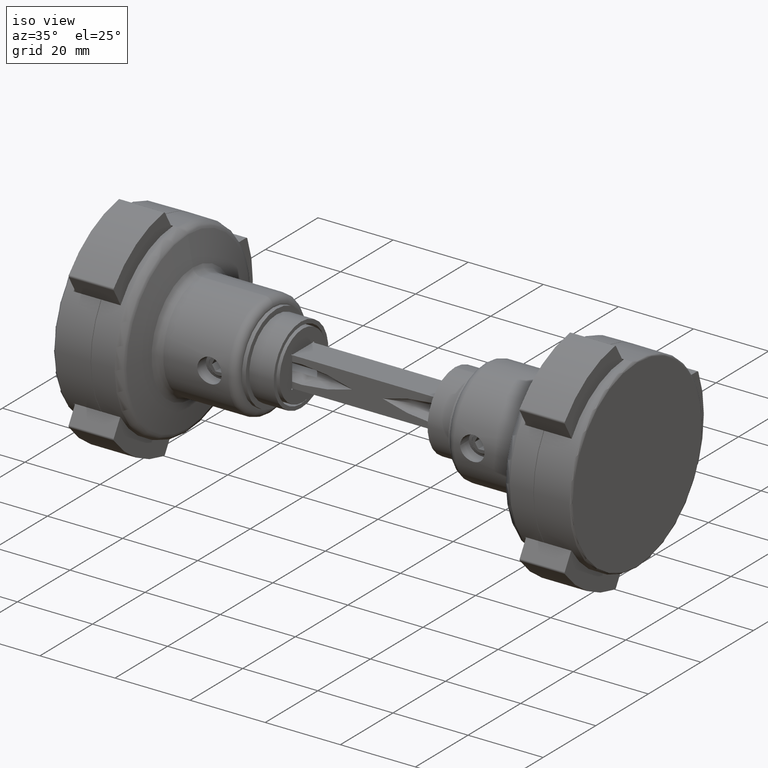
[diagram: clean part render]
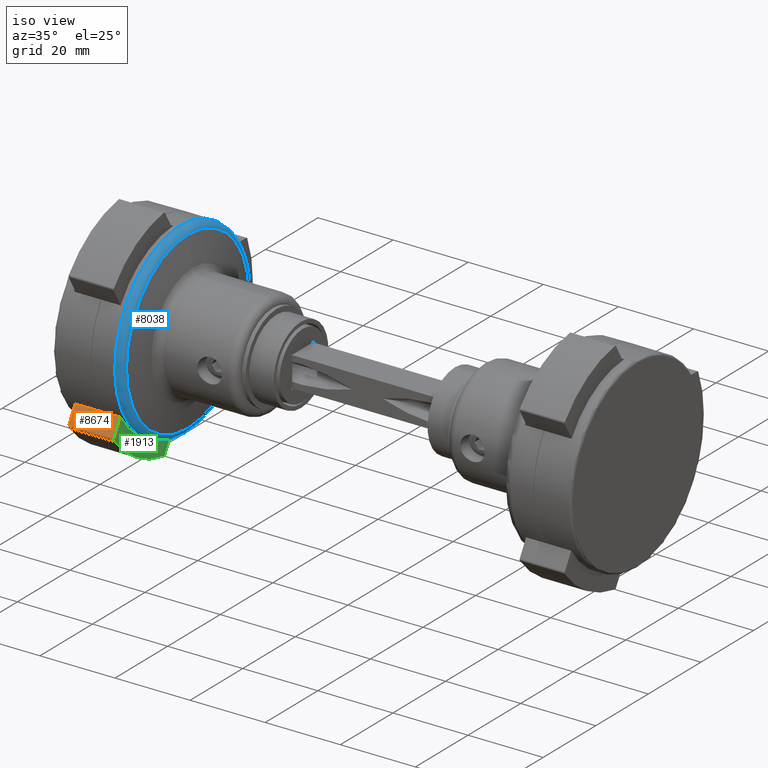
[diagram: same view with three faces highlighted in distinct colors, each labeled with its STEP entity id]
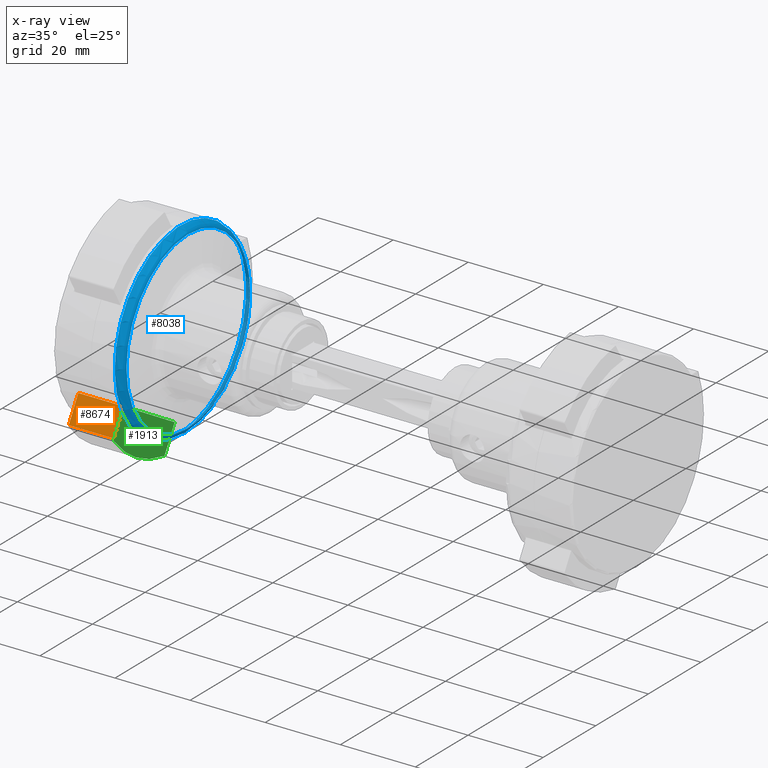
[diagram: x-ray of the same camera — body ghosted, the three highlighted faces saturated]
A machine part, iso view with three faces highlighted in distinct colors.
The next image is the same camera in x-ray (body ghosted, the three faces saturated) — at least one of them is partly hidden behind the body in this view.
Their STEP definitions:

[orange] entity #8674 — the highlighted planar face has unit normal (0, -0.866, 0.5).
#261 = VECTOR ( 'NONE', #10300, 1000.000000000000000 ) ;
#285 = EDGE_CURVE ( 'NONE', #1929, #10560, #5094, .T. ) ;
#767 = CARTESIAN_POINT ( 'NONE',  ( -17.79370246192117122, -23.26357996303704923, 7.050000000000007816 ) ) ;
#1323 = DIRECTION ( 'NONE',  ( 0.8660254037844363761, 0.5000000000000039968, 1.047546959708650976E-15 ) ) ;
#1929 = VERTEX_POINT ( 'NONE', #767 ) ;
#2309 = ORIENTED_EDGE ( 'NONE', *, *, #8384, .F. ) ;
#2332 = AXIS2_PLACEMENT_3D ( 'NONE', #5862, #15747, #8353 ) ;
#2508 = VECTOR ( 'NONE', #8972, 999.9999999999998863 ) ;
#3922 = CARTESIAN_POINT ( 'NONE',  ( -11.47900172474247071, -19.61778579257491373, -4.949999999999995737 ) ) ;
#4144 = ORIENTED_EDGE ( 'NONE', *, *, #11871, .T. ) ;
#5094 = LINE ( 'NONE', #15210, #261 ) ;
#5167 = DIRECTION ( 'NONE',  ( 9.692327025551828717E-16, 4.163336342344337520E-16, 1.000000000000000000 ) ) ;
#5461 = VERTEX_POINT ( 'NONE', #6381 ) ;
#5862 = CARTESIAN_POINT ( 'NONE',  ( -11.47900172474247071, -19.61778579257491018, -29.76160621783505178 ) ) ;
#5970 = EDGE_CURVE ( 'NONE', #10560, #5461, #6326, .T. ) ;
#6326 = LINE ( 'NONE', #3922, #2508 ) ;
#6381 = CARTESIAN_POINT ( 'NONE',  ( -11.47900172474247071, -19.61778579257491373, -4.949999999999995737 ) ) ;
#7408 = LINE ( 'NONE', #11207, #12802 ) ;
#8270 = VERTEX_POINT ( 'NONE', #14343 ) ;
#8353 = DIRECTION ( 'NONE',  ( 9.692327025551828717E-16, 4.163336342344337520E-16, 1.000000000000000000 ) ) ;
#8384 = EDGE_CURVE ( 'NONE', #1929, #8270, #11311, .T. ) ;
#8674 = ADVANCED_FACE ( 'NONE', ( #13604 ), #12007, .T. ) ;
#8972 = DIRECTION ( 'NONE',  ( 0.8660254037844363761, 0.5000000000000039968, 1.047546959708650976E-15 ) ) ;
#9185 = CARTESIAN_POINT ( 'NONE',  ( -17.79370246192122451, -23.26357996303704567, -4.950000000000100542 ) ) ;
#9570 = VECTOR ( 'NONE', #1323, 999.9999999999998863 ) ;
#9620 = ORIENTED_EDGE ( 'NONE', *, *, #5970, .T. ) ;
#10300 = DIRECTION ( 'NONE',  ( -9.692327025551828717E-16, -4.163336342344337520E-16, -1.000000000000000000 ) ) ;
#10560 = VERTEX_POINT ( 'NONE', #9185 ) ;
#11207 = CARTESIAN_POINT ( 'NONE',  ( -11.47900172474247071, -19.61778579257491018, -29.76160621783505178 ) ) ;
#11311 = LINE ( 'NONE', #15970, #9570 ) ;
#11871 = EDGE_CURVE ( 'NONE', #5461, #8270, #7408, .T. ) ;
#12007 = PLANE ( 'NONE',  #2332 ) ;
#12802 = VECTOR ( 'NONE', #5167, 1000.000000000000000 ) ;
#13604 = FACE_OUTER_BOUND ( 'NONE', #15648, .T. ) ;
#14171 = ORIENTED_EDGE ( 'NONE', *, *, #285, .T. ) ;
#14343 = CARTESIAN_POINT ( 'NONE',  ( -11.47900172474244407, -19.61778579257491728, 7.050000000000007816 ) ) ;
#15210 = CARTESIAN_POINT ( 'NONE',  ( -17.79370246192122096, -23.26357996303704923, -29.76160621783505178 ) ) ;
#15648 = EDGE_LOOP ( 'NONE', ( #2309, #14171, #9620, #4144 ) ) ;
#15747 = DIRECTION ( 'NONE',  ( 0.5000000000000039968, -0.8660254037844363761, -1.240608475806779719E-16 ) ) ;
#15970 = CARTESIAN_POINT ( 'NONE',  ( -11.47900172474244407, -19.61778579257491728, 7.050000000000007816 ) ) ;

[blue] entity #8038 — the highlighted toroidal blend (fillet) surface has major radius 23 mm and minor (blend) radius 2 mm.
#1105 = DIRECTION ( 'NONE',  ( -9.692327025551828717E-16, -4.163336342344337520E-16, -1.000000000000000000 ) ) ;
#1966 = VERTEX_POINT ( 'NONE', #5009 ) ;
#2219 = ORIENTED_EDGE ( 'NONE', *, *, #9111, .F. ) ;
#2818 = ORIENTED_EDGE ( 'NONE', *, *, #11298, .T. ) ;
#3060 = DIRECTION ( 'NONE',  ( -9.692327025551828717E-16, -4.163336342344337520E-16, -1.000000000000000000 ) ) ;
#3437 = FACE_OUTER_BOUND ( 'NONE', #9743, .T. ) ;
#3541 = CARTESIAN_POINT ( 'NONE',  ( -6.202930970178343131E-15, -2.664467250136583167E-15, -6.399836647923241806 ) ) ;
#3892 = AXIS2_PLACEMENT_3D ( 'NONE', #9104, #3060, #5481 ) ;
#3998 = CIRCLE ( 'NONE', #3892, 23.34729635533384595 ) ;
#5009 = CARTESIAN_POINT ( 'NONE',  ( -25.00000000000000711, -2.389470634198725617E-15, -6.399836647923265787 ) ) ;
#5223 = EDGE_LOOP ( 'NONE', ( #2219 ) ) ;
#5481 = DIRECTION ( 'NONE',  ( -1.000000000000000000, 1.099986463751429531E-17, -9.659107780394654972E-16 ) ) ;
#5904 = FACE_OUTER_BOUND ( 'NONE', #5223, .T. ) ;
#6079 = TOROIDAL_SURFACE ( 'NONE', #13649, 23.00000000000000000, 2.000000000000000888 ) ;
#6277 = CARTESIAN_POINT ( 'NONE',  ( -23.34729635533385306, -3.227667332243643411E-15, -8.369452153947674944 ) ) ;
#6679 = AXIS2_PLACEMENT_3D ( 'NONE', #3541, #1105, #7188 ) ;
#7188 = DIRECTION ( 'NONE',  ( -1.000000000000000000, 1.099986463751429993E-17, -9.714451465470119729E-16 ) ) ;
#7568 = CARTESIAN_POINT ( 'NONE',  ( -6.202930970178324198E-15, -2.664467250136618666E-15, -6.399836647923234700 ) ) ;
#8038 = ADVANCED_FACE ( 'NONE', ( #5904, #3437 ), #6079, .T. ) ;
#9104 = CARTESIAN_POINT ( 'NONE',  ( -8.111946730076965414E-15, -3.484484431804246536E-15, -8.369452153947651851 ) ) ;
#9111 = EDGE_CURVE ( 'NONE', #11756, #11756, #3998, .T. ) ;
#9743 = EDGE_LOOP ( 'NONE', ( #2818 ) ) ;
#11298 = EDGE_CURVE ( 'NONE', #1966, #1966, #14543, .T. ) ;
#11756 = VERTEX_POINT ( 'NONE', #6277 ) ;
#12563 = DIRECTION ( 'NONE',  ( -9.692327025551828717E-16, -4.163336342344337520E-16, -1.000000000000000000 ) ) ;
#13649 = AXIS2_PLACEMENT_3D ( 'NONE', #7568, #12563, #13954 ) ;
#13954 = DIRECTION ( 'NONE',  ( -1.000000000000000000, 1.099986463751510883E-17, 9.692327025551828717E-16 ) ) ;
#14543 = CIRCLE ( 'NONE', #6679, 25.00000000000000000 ) ;

[green] entity #1913 — the highlighted planar face has unit normal (1, -0, -0).
#717 = PLANE ( 'NONE',  #5432 ) ;
#1163 = CARTESIAN_POINT ( 'NONE',  ( -18.04370246192122451, -22.83056726114483226, -4.950000000000100542 ) ) ;
#1442 = FACE_OUTER_BOUND ( 'NONE', #4228, .T. ) ;
#1913 = ADVANCED_FACE ( 'NONE', ( #1442 ), #717, .T. ) ;
#2281 = DIRECTION ( 'NONE',  ( 0.5000000000000047740, -0.8660254037844358210, 1.172110456741085581E-16 ) ) ;
#2299 = ORIENTED_EDGE ( 'NONE', *, *, #11504, .T. ) ;
#2313 = VERTEX_POINT ( 'NONE', #11239 ) ;
#2508 = VECTOR ( 'NONE', #8972, 999.9999999999998863 ) ;
#3317 = VECTOR ( 'NONE', #12115, 999.9999999999998863 ) ;
#3876 = EDGE_CURVE ( 'NONE', #2313, #10696, #15456, .T. ) ;
#3922 = CARTESIAN_POINT ( 'NONE',  ( -11.47900172474247071, -19.61778579257491373, -4.949999999999995737 ) ) ;
#4228 = EDGE_LOOP ( 'NONE', ( #15192, #14352, #9734, #2299, #5659, #10206 ) ) ;
#4580 = CARTESIAN_POINT ( 'NONE',  ( -4.797701877648145610E-15, -2.060851489460448011E-15, -4.950000000000002842 ) ) ;
#4911 = AXIS2_PLACEMENT_3D ( 'NONE', #4580, #9528, #2281 ) ;
#4957 = VECTOR ( 'NONE', #7531, 1000.000000000000114 ) ;
#5236 = DIRECTION ( 'NONE',  ( -9.692327025551828717E-16, -4.163336342344337520E-16, -1.000000000000000000 ) ) ;
#5426 = DIRECTION ( 'NONE',  ( -8.451718549745039630E-16, -6.312133254742256545E-16, -1.000000000000000000 ) ) ;
#5432 = AXIS2_PLACEMENT_3D ( 'NONE', #6840, #5426, #14269 ) ;
#5461 = VERTEX_POINT ( 'NONE', #6381 ) ;
#5659 = ORIENTED_EDGE ( 'NONE', *, *, #3876, .F. ) ;
#5970 = EDGE_CURVE ( 'NONE', #10560, #5461, #6326, .T. ) ;
#6326 = LINE ( 'NONE', #3922, #2508 ) ;
#6381 = CARTESIAN_POINT ( 'NONE',  ( -11.47900172474247071, -19.61778579257491373, -4.949999999999995737 ) ) ;
#6840 = CARTESIAN_POINT ( 'NONE',  ( -4.797701877648142455E-15, -2.060851489460450772E-15, -4.950000000000002842 ) ) ;
#7531 = DIRECTION ( 'NONE',  ( -0.5000000000000159872, 0.8660254037844293817, -1.240608475806920728E-16 ) ) ;
#8561 = CIRCLE ( 'NONE', #11331, 0.5000000000000004441 ) ;
#8972 = DIRECTION ( 'NONE',  ( 0.8660254037844363761, 0.5000000000000039968, 1.047546959708650976E-15 ) ) ;
#9185 = CARTESIAN_POINT ( 'NONE',  ( -17.79370246192122451, -23.26357996303704567, -4.950000000000100542 ) ) ;
#9377 = CIRCLE ( 'NONE', #4911, 29.60000000000000853 ) ;
#9528 = DIRECTION ( 'NONE',  ( 9.692327025551828717E-16, 4.163336342344337520E-16, 1.000000000000000000 ) ) ;
#9699 = EDGE_CURVE ( 'NONE', #10560, #12991, #10726, .T. ) ;
#9724 = DIRECTION ( 'NONE',  ( -1.000000000000000000, 0.000000000000000000, -1.734723475976805517E-15 ) ) ;
#9734 = ORIENTED_EDGE ( 'NONE', *, *, #10070, .F. ) ;
#9758 = CARTESIAN_POINT ( 'NONE',  ( -18.35373171384426882, -23.22284504913700687, -4.950000000000100542 ) ) ;
#9772 = EDGE_CURVE ( 'NONE', #5461, #2313, #14780, .T. ) ;
#9858 = AXIS2_PLACEMENT_3D ( 'NONE', #1163, #14632, #9724 ) ;
#10070 = EDGE_CURVE ( 'NONE', #12167, #12991, #9377, .T. ) ;
#10206 = ORIENTED_EDGE ( 'NONE', *, *, #9772, .F. ) ;
#10560 = VERTEX_POINT ( 'NONE', #9185 ) ;
#10696 = VERTEX_POINT ( 'NONE', #16000 ) ;
#10726 = CIRCLE ( 'NONE', #9858, 0.5000000000000004441 ) ;
#10884 = CARTESIAN_POINT ( 'NONE',  ( -22.72900172474261993, -0.1322142074254849531, -4.950000000000002842 ) ) ;
#11239 = CARTESIAN_POINT ( 'NONE',  ( -22.72900172474261993, -0.1322142074254849531, -4.950000000000002842 ) ) ;
#11331 = AXIS2_PLACEMENT_3D ( 'NONE', #12779, #5236, #13957 ) ;
#11504 = EDGE_CURVE ( 'NONE', #12167, #10696, #8561, .T. ) ;
#12115 = DIRECTION ( 'NONE',  ( -0.8660254037844363761, -0.5000000000000039968, -1.047546959708650976E-15 ) ) ;
#12167 = VERTEX_POINT ( 'NONE', #15933 ) ;
#12779 = CARTESIAN_POINT ( 'NONE',  ( -28.79370246192127070, -4.211021079779730059, -4.950000000000002842 ) ) ;
#12991 = VERTEX_POINT ( 'NONE', #9758 ) ;
#13957 = DIRECTION ( 'NONE',  ( -1.000000000000000000, 0.000000000000000000, -1.734723475976805517E-15 ) ) ;
#14269 = DIRECTION ( 'NONE',  ( 0.5000000000000039968, -0.8660254037844363761, 1.240608475806778487E-16 ) ) ;
#14352 = ORIENTED_EDGE ( 'NONE', *, *, #9699, .T. ) ;
#14632 = DIRECTION ( 'NONE',  ( -9.692327025551828717E-16, -4.163336342344337520E-16, -1.000000000000000000 ) ) ;
#14780 = LINE ( 'NONE', #14891, #4957 ) ;
#14891 = CARTESIAN_POINT ( 'NONE',  ( -11.47900172474247071, -19.61778579257491373, -4.949999999999995737 ) ) ;
#15192 = ORIENTED_EDGE ( 'NONE', *, *, #5970, .F. ) ;
#15456 = LINE ( 'NONE', #10884, #3317 ) ;
#15933 = CARTESIAN_POINT ( 'NONE',  ( -29.28843961762438042, -4.283375393865292757, -4.950000000000002842 ) ) ;
#16000 = CARTESIAN_POINT ( 'NONE',  ( -29.04370246192127425, -3.778008377887509539, -4.950000000000002842 ) ) ;